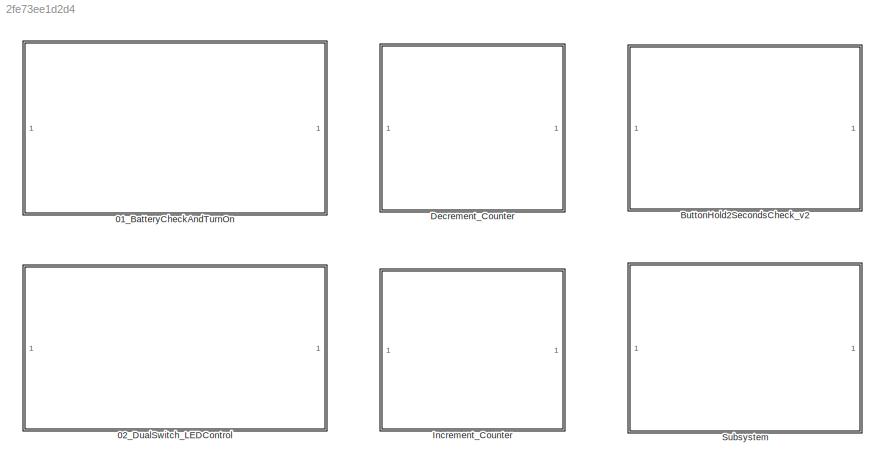
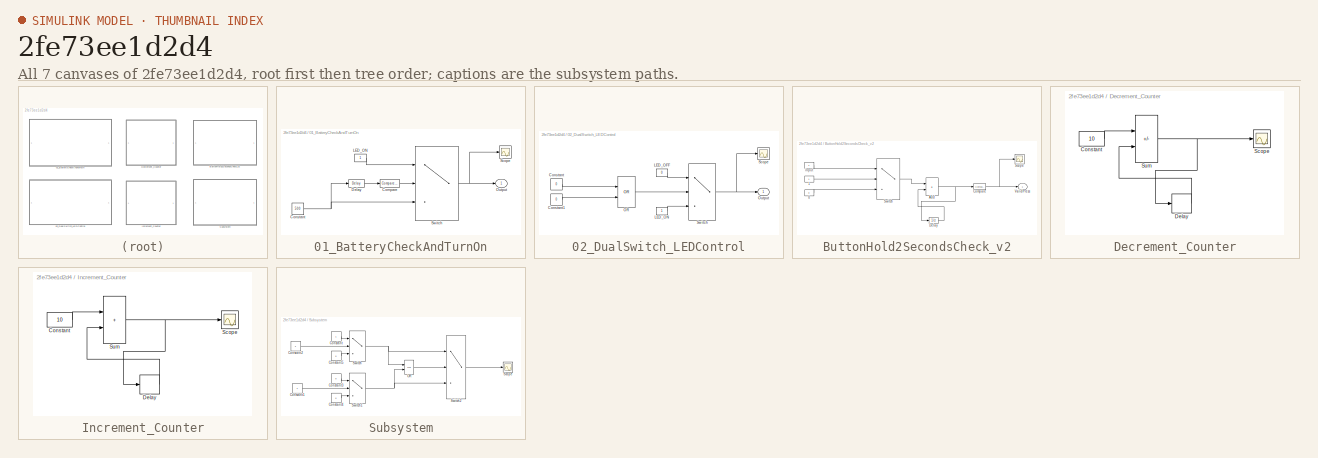
[diagram: thumbnail index - all 7 canvases of the model, root first then tree order]
MODEL slx_2fe73ee1d2d4
KIND model
CONFIG AbsTol = auto
CONFIG EnableMultiTasking = off
CONFIG FixedStep = auto
CONFIG MaxStep = auto
CONFIG MinStep = auto
CONFIG RelTol = 1e-3
CONFIG SampleTimeConstraint = Unconstrained
CONFIG SolverName = FixedStepDiscrete
CONFIG StartTime = 0.0
CONFIG StopTime = 10.0
BLOCK [SubSystem] 01_BatteryCheckAndTurnOn
BLOCK [Reference] 01_BatteryCheckAndTurnOn/Compare  REF=simulink/Logic and Bit
Operations/Compare
To Constant
  SourceBlock = simulink/Logic and Bit\nOperations/Compare\nTo Constant
  SourceType = Compare To Constant
BLOCK [Constant] 01_BatteryCheckAndTurnOn/Constant
  Value = 500
BLOCK [Delay] 01_BatteryCheckAndTurnOn/Delay
  DelayLength = 5
  InputPortMap = u0
BLOCK [Constant] 01_BatteryCheckAndTurnOn/LED_ON
BLOCK [Outport] 01_BatteryCheckAndTurnOn/Output
BLOCK [Scope] 01_BatteryCheckAndTurnOn/Scope
  ActiveDisplayYMaximum = 562.375
  ActiveDisplayYMinimum = -61.374999999999986
  DataLoggingVariableName = ScopeData1
  Floating = off
  GraphicalSettings = {"Style":{"BackgroundColor":[0.12941176470588237,0.12941176470588237,0.12941176470588237],"AxesColor":[0.07058823529411765,0.07058823529411765,0.07058823529411765],"LabelsColor":[0.8509803921568627,0.8509803921568627,0.8509803921568627],"PreserveColors":false,"Visible":[true],"LineStyle":["-"],"LineWidth":[1.5],"BarWidth":[0.9],"LineColor":["auto"],"LineFaceAlpha":[1],"LineEdgeAlpha":[1],"Marker":...<+1888ch>
  MultipleDisplayCache = [{"MaxYLimMag":562.375,"MaxYLimReal":562.375,"MinYLimMag":0,"MinYLimReal":-61.374999999999986,"PlotAsMagnitudePhase":false,"ShowGrid":true,"ShowLegend":false,"Title":"%<SignalLabel>","YLabel":""}]
  NumInputPorts = 1
  ScopeFrameLocation = window
  WasSavedAsWebScope = on
  WindowPosition = [488.000000,222.000000,560.000000,420.000000,]
BLOCK [Switch] 01_BatteryCheckAndTurnOn/Switch
  Criteria = u2 > Threshold
  InputSameDT = off
  SaturateOnIntegerOverflow = off
  Threshold = 0.5
BLOCK [SubSystem] 02_DualSwitch_LEDControl
BLOCK [Constant] 02_DualSwitch_LEDControl/Constant
  Value = 0
BLOCK [Constant] 02_DualSwitch_LEDControl/Constant1
  Value = 0
BLOCK [Constant] 02_DualSwitch_LEDControl/LED_OFF
  Value = 0
BLOCK [Constant] 02_DualSwitch_LEDControl/LED_ON
BLOCK [Logic] 02_DualSwitch_LEDControl/OR
  AllPortsSameDT = off
  Operator = OR
  OutDataTypeStr = boolean
BLOCK [Outport] 02_DualSwitch_LEDControl/Output
BLOCK [Scope] 02_DualSwitch_LEDControl/Scope
  ActiveDisplayYMaximum = 1.2572463768115942
  ActiveDisplayYMinimum = -0.34275362318840641
  Floating = off
  GraphicalSettings = {"Style":{"BackgroundColor":[0.12941176470588237,0.12941176470588237,0.12941176470588237],"AxesColor":[0.07058823529411765,0.07058823529411765,0.07058823529411765],"LabelsColor":[0.8509803921568627,0.8509803921568627,0.8509803921568627],"PreserveColors":false,"Visible":[true],"LineStyle":["-"],"LineWidth":[1.5],"BarWidth":[0.9],"LineColor":["auto"],"LineFaceAlpha":[1],"LineEdgeAlpha":[1],"Marker":...<+1968ch>
  MultipleDisplayCache = [{"MaxYLimMag":1.1,"MaxYLimReal":1.2572463768115942,"MinYLimMag":0.9,"MinYLimReal":-0.34275362318840641,"PlotAsMagnitudePhase":false,"ShowGrid":true,"ShowLegend":false,"Title":"%<SignalLabel>","YLabel":""}]
  NumInputPorts = 1
  ScopeFrameLocation = window
  WasSavedAsWebScope = on
  WindowPosition = [873.000000,32.000000,560.000000,420.000000,]
BLOCK [Switch] 02_DualSwitch_LEDControl/Switch
  Criteria = u2 > Threshold
  InputSameDT = off
  SaturateOnIntegerOverflow = off
  Threshold = 0.5
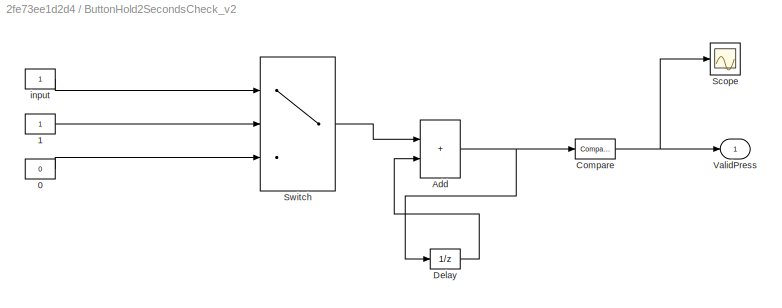
BLOCK [SubSystem] ButtonHold2SecondsCheck_v2
BLOCK [Constant] ButtonHold2SecondsCheck_v2/0
  Value = 0
BLOCK [Constant] ButtonHold2SecondsCheck_v2/1
BLOCK [Sum] ButtonHold2SecondsCheck_v2/Add
  IconShape = rectangular
BLOCK [Reference] ButtonHold2SecondsCheck_v2/Compare  REF=simulink/Logic and Bit
Operations/Compare
To Constant
  SourceBlock = simulink/Logic and Bit\nOperations/Compare\nTo Constant
  SourceType = Compare To Constant
BLOCK [UnitDelay] ButtonHold2SecondsCheck_v2/Delay
  HasFrameUpgradeWarning = on
  SampleTime = 0.1
BLOCK [Scope] ButtonHold2SecondsCheck_v2/Scope
  ActiveDisplayYMaximum = 1.125
  ActiveDisplayYMinimum = -0.12499999999999997
  DataLoggingVariableName = ScopeData2
  Floating = off
  GraphicalSettings = {"Style":{"BackgroundColor":[0.12941176470588237,0.12941176470588237,0.12941176470588237],"AxesColor":[0.07058823529411765,0.07058823529411765,0.07058823529411765],"LabelsColor":[0.8509803921568627,0.8509803921568627,0.8509803921568627],"PreserveColors":false,"Visible":[true],"LineStyle":["-"],"LineWidth":[1.5],"BarWidth":[0.9],"LineColor":["auto"],"LineFaceAlpha":[1],"LineEdgeAlpha":[1],"Marker":...<+1942ch>
  MultipleDisplayCache = [{"MaxYLimMag":1.125,"MaxYLimReal":1.125,"MinYLimMag":0,"MinYLimReal":-0.12499999999999997,"PlotAsMagnitudePhase":false,"ShowGrid":true,"ShowLegend":false,"Title":"%<SignalLabel>","YLabel":""}]
  NumInputPorts = 1
  ScopeFrameLocation = window
  WasSavedAsWebScope = on
  WindowPosition = [708.000000,146.000000,560.000000,420.000000,]
BLOCK [Switch] ButtonHold2SecondsCheck_v2/Switch
  Criteria = u2 > Threshold
  InputSameDT = off
  SaturateOnIntegerOverflow = off
  Threshold = 0.5
BLOCK [Outport] ButtonHold2SecondsCheck_v2/ValidPress
BLOCK [Constant] ButtonHold2SecondsCheck_v2/input
BLOCK [SubSystem] Decrement_Counter
BLOCK [Constant] Decrement_Counter/Constant
  Value = 10
BLOCK [Delay] Decrement_Counter/Delay
  InputPortMap = u0
BLOCK [Scope] Decrement_Counter/Scope
  ActiveDisplayYMaximum = 302.49999999999994
  ActiveDisplayYMinimum = -2822.5
  Floating = off
  GraphicalSettings = {"AxesScalingProperties":{"AlignXAxis":"Center","AlignYAxis":"Center","AutoScaleXAxisLimits":false,"AxesScaling":"Manual","AxesScalingNumUpdates":10,"ExpandOnly":true,"ScaleAxesLimitsAtStop":false,"XAxisDataRange":100,"YAxisDataRange":80},"DisplayProperties":{"ColorOrder":["auto","auto","auto","auto","auto","auto","auto","auto","auto","auto","auto","auto","auto","auto","auto","auto","auto","auto",...<+1947ch>
  MultipleDisplayCache = [{"MaxYLimMag":2822.5,"MaxYLimReal":302.49999999999994,"MinYLimMag":0,"MinYLimReal":-2822.5,"PlotAsMagnitudePhase":false,"ShowGrid":true,"ShowLegend":false,"Title":"%<SignalLabel>","YLabel":""}]
  NumInputPorts = 1
  ScopeFrameLocation = window
  WasSavedAsWebScope = on
  WindowPosition = [488.000000,274.000000,620.000000,368.000000,]
BLOCK [Sum] Decrement_Counter/Sum
  IconShape = rectangular
  Inputs = |-+
BLOCK [SubSystem] Increment_Counter
BLOCK [Constant] Increment_Counter/Constant
  Value = 10
BLOCK [Delay] Increment_Counter/Delay
  InputPortMap = u0
BLOCK [Scope] Increment_Counter/Scope
  ActiveDisplayYMaximum = 302.49999999999994
  ActiveDisplayYMinimum = -2822.5
  Floating = off
  GraphicalSettings = {"Style":{"BackgroundColor":[0.12941176470588237,0.12941176470588237,0.12941176470588237],"AxesColor":[0.07058823529411765,0.07058823529411765,0.07058823529411765],"LabelsColor":[0.8509803921568627,0.8509803921568627,0.8509803921568627],"PreserveColors":false,"Visible":[true],"LineStyle":["-"],"LineWidth":[1.5],"BarWidth":[0.9],"LineColor":["auto"],"LineFaceAlpha":[1],"LineEdgeAlpha":[1],"Marker":...<+1940ch>
  MultipleDisplayCache = [{"MaxYLimMag":2822.5,"MaxYLimReal":302.49999999999994,"MinYLimMag":0,"MinYLimReal":-2822.5,"PlotAsMagnitudePhase":false,"ShowGrid":true,"ShowLegend":false,"Title":"%<SignalLabel>","YLabel":""}]
  NumInputPorts = 1
  ScopeFrameLocation = window
  WasSavedAsWebScope = on
  WindowPosition = [488.000000,274.000000,620.000000,368.000000,]
BLOCK [Sum] Increment_Counter/Sum
  IconShape = rectangular
  Inputs = |++
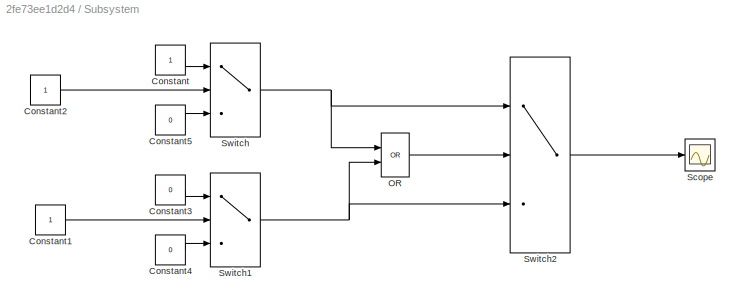
BLOCK [SubSystem] Subsystem
BLOCK [Constant] Subsystem/Constant
BLOCK [Constant] Subsystem/Constant1
BLOCK [Constant] Subsystem/Constant2
BLOCK [Constant] Subsystem/Constant3
  Value = 0
BLOCK [Constant] Subsystem/Constant4
  Value = 0
BLOCK [Constant] Subsystem/Constant5
  Value = 0
BLOCK [Logic] Subsystem/OR
  AllPortsSameDT = off
  IconShape = distinctive
  Operator = OR
  OutDataTypeStr = boolean
BLOCK [Scope] Subsystem/Scope
  ActiveDisplayYMaximum = 25.4988649262202
  ActiveDisplayYMinimum = -54.5011350737798
  DataLoggingVariableName = ScopeData3
  Floating = off
  GraphicalSettings = {"Style":{"BackgroundColor":[0.12941176470588237,0.12941176470588237,0.12941176470588237],"AxesColor":[0.07058823529411765,0.07058823529411765,0.07058823529411765],"LabelsColor":[0.8509803921568627,0.8509803921568627,0.8509803921568627],"PreserveColors":false,"Visible":[true],"LineStyle":["-"],"LineWidth":[1.5],"BarWidth":[0.9],"LineColor":["auto"],"LineFaceAlpha":[1],"LineEdgeAlpha":[1],"Marker":...<+1950ch>
  MultipleDisplayCache = [{"MaxYLimMag":4.5,"MaxYLimReal":25.4988649262202,"MinYLimMag":0,"MinYLimReal":-54.5011350737798,"PlotAsMagnitudePhase":false,"ShowGrid":true,"ShowLegend":false,"Title":"%<SignalLabel>","YLabel":""}]
  NumInputPorts = 1
  ScopeFrameLocation = window
  WasSavedAsWebScope = on
  WindowPosition = [711.000000,202.000000,625.000000,420.000000,]
BLOCK [Switch] Subsystem/Switch
  InputSameDT = off
  SaturateOnIntegerOverflow = off
  Threshold = 1
BLOCK [Switch] Subsystem/Switch1
  InputSameDT = off
  SaturateOnIntegerOverflow = off
  Threshold = 1
BLOCK [Switch] Subsystem/Switch2
  InputSameDT = off
  SaturateOnIntegerOverflow = off
  Threshold = 1
LINE 01_BatteryCheckAndTurnOn/Compare:1 -> 01_BatteryCheckAndTurnOn/Switch:2
NET 01_BatteryCheckAndTurnOn/Constant:1 -> 01_BatteryCheckAndTurnOn/Delay:1, 01_BatteryCheckAndTurnOn/Switch:3
LINE 01_BatteryCheckAndTurnOn/Delay:1 -> 01_BatteryCheckAndTurnOn/Compare:1
LINE 01_BatteryCheckAndTurnOn/LED_ON:1 -> 01_BatteryCheckAndTurnOn/Switch:1
NET 01_BatteryCheckAndTurnOn/Switch:1 -> 01_BatteryCheckAndTurnOn/Output:1, 01_BatteryCheckAndTurnOn/Scope:1
LINE 02_DualSwitch_LEDControl/Constant1:1 -> 02_DualSwitch_LEDControl/OR:2
LINE 02_DualSwitch_LEDControl/Constant:1 -> 02_DualSwitch_LEDControl/OR:1
LINE 02_DualSwitch_LEDControl/LED_OFF:1 -> 02_DualSwitch_LEDControl/Switch:1
LINE 02_DualSwitch_LEDControl/LED_ON:1 -> 02_DualSwitch_LEDControl/Switch:3
LINE 02_DualSwitch_LEDControl/OR:1 -> 02_DualSwitch_LEDControl/Switch:2
NET 02_DualSwitch_LEDControl/Switch:1 -> 02_DualSwitch_LEDControl/Output:1, 02_DualSwitch_LEDControl/Scope:1
LINE ButtonHold2SecondsCheck_v2/0:1 -> ButtonHold2SecondsCheck_v2/Switch:3
LINE ButtonHold2SecondsCheck_v2/1:1 -> ButtonHold2SecondsCheck_v2/Switch:2
NET ButtonHold2SecondsCheck_v2/Add:1 -> ButtonHold2SecondsCheck_v2/Compare:1, ButtonHold2SecondsCheck_v2/Delay:1
NET ButtonHold2SecondsCheck_v2/Compare:1 -> ButtonHold2SecondsCheck_v2/Scope:1, ButtonHold2SecondsCheck_v2/ValidPress:1
LINE ButtonHold2SecondsCheck_v2/Delay:1 -> ButtonHold2SecondsCheck_v2/Add:2
LINE ButtonHold2SecondsCheck_v2/Switch:1 -> ButtonHold2SecondsCheck_v2/Add:1
LINE ButtonHold2SecondsCheck_v2/input:1 -> ButtonHold2SecondsCheck_v2/Switch:1
LINE Decrement_Counter/Constant:1 -> Decrement_Counter/Sum:1
LINE Decrement_Counter/Delay:1 -> Decrement_Counter/Sum:2
NET Decrement_Counter/Sum:1 -> Decrement_Counter/Delay:1, Decrement_Counter/Scope:1
LINE Increment_Counter/Constant:1 -> Increment_Counter/Sum:1
LINE Increment_Counter/Delay:1 -> Increment_Counter/Sum:2
NET Increment_Counter/Sum:1 -> Increment_Counter/Delay:1, Increment_Counter/Scope:1
LINE Subsystem/Constant1:1 -> Subsystem/Switch1:2
LINE Subsystem/Constant2:1 -> Subsystem/Switch:2
LINE Subsystem/Constant3:1 -> Subsystem/Switch1:1
LINE Subsystem/Constant4:1 -> Subsystem/Switch1:3
LINE Subsystem/Constant5:1 -> Subsystem/Switch:3
LINE Subsystem/Constant:1 -> Subsystem/Switch:1
LINE Subsystem/OR:1 -> Subsystem/Switch2:2
NET Subsystem/Switch1:1 -> Subsystem/OR:2, Subsystem/Switch2:3
LINE Subsystem/Switch2:1 -> Subsystem/Scope:1
NET Subsystem/Switch:1 -> Subsystem/OR:1, Subsystem/Switch2:1
note: NET lines group one-source signal fan-out (src -> all destinations, sorted); 1:1 wires keep LINE
